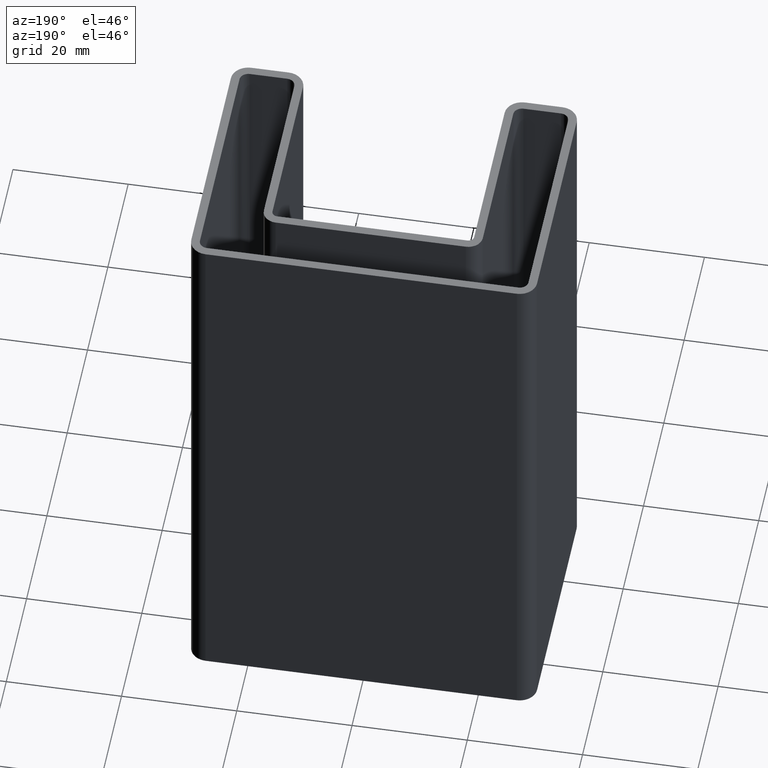
[diagram: clean part render]
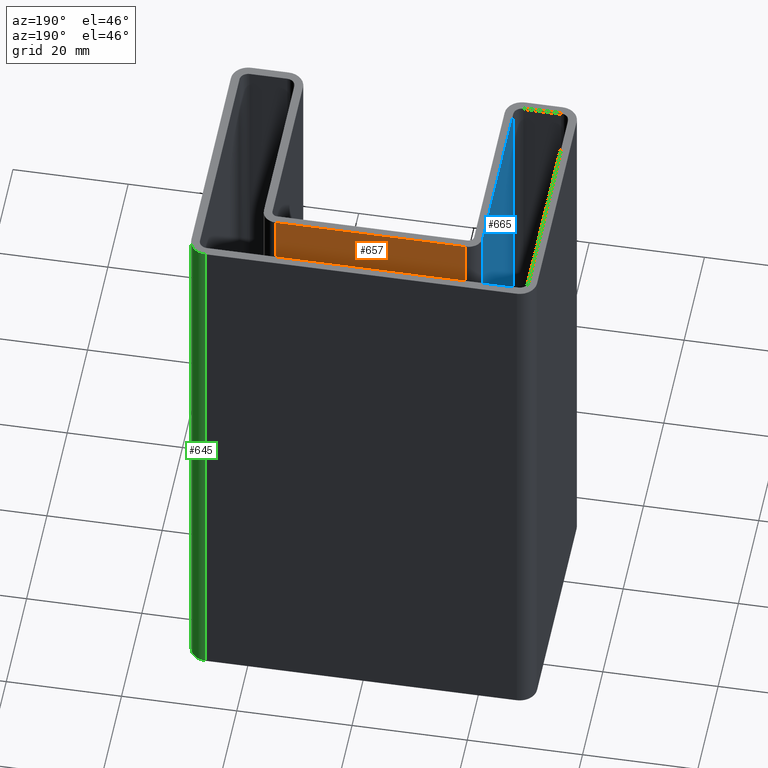
[diagram: same view with three faces highlighted in distinct colors, each labeled with its STEP entity id]
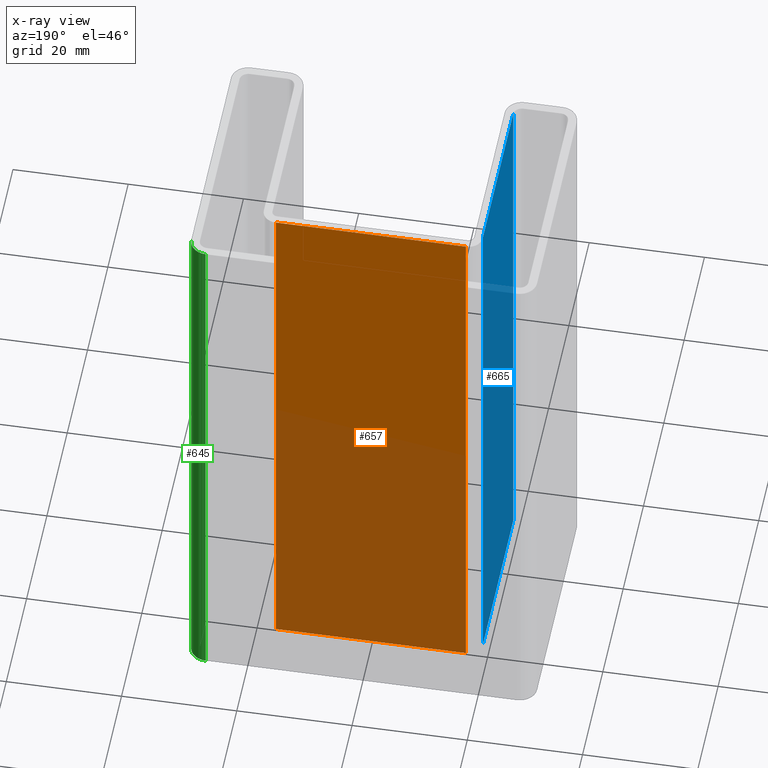
[diagram: x-ray of the same camera — body ghosted, the three highlighted faces saturated]
A machine part, auxiliary view with three faces highlighted in distinct colors.
The next image is the same camera in x-ray (body ghosted, the three faces saturated) — at least one of them is partly hidden behind the body in this view.
Their STEP definitions:

[orange] entity #657 — the highlighted planar face has unit normal (0, -1, 0).
#200=ORIENTED_EDGE('',*,*,#342,.F.);
#201=ORIENTED_EDGE('',*,*,#327,.F.);
#202=ORIENTED_EDGE('',*,*,#343,.F.);
#203=ORIENTED_EDGE('',*,*,#265,.F.);
#265=EDGE_CURVE('',#360,#362,#424,.T.);
#327=EDGE_CURVE('',#414,#401,#461,.T.);
#342=EDGE_CURVE('',#401,#360,#470,.T.);
#343=EDGE_CURVE('',#362,#414,#471,.F.);
#360=VERTEX_POINT('',#961);
#362=VERTEX_POINT('',#964);
#401=VERTEX_POINT('',#1059);
#414=VERTEX_POINT('',#1085);
#424=LINE('',#963,#488);
#461=LINE('',#1086,#525);
#470=LINE('',#1115,#534);
#471=LINE('',#1117,#535);
#488=VECTOR('',#763,1000.);
#525=VECTOR('',#866,1000.);
#534=VECTOR('',#905,1000.);
#535=VECTOR('',#908,1000.);
#569=EDGE_LOOP('',(#200,#201,#202,#203));
#605=FACE_BOUND('',#569,.T.);
#631=PLANE('',#736);
#657=ADVANCED_FACE('',(#605),#631,.F.);
#736=AXIS2_PLACEMENT_3D('',#1116,#906,#907);
#763=DIRECTION('',(-1.,0.,0.));
#866=DIRECTION('',(1.,0.,0.));
#905=DIRECTION('',(0.,0.,1.));
#906=DIRECTION('',(0.,-1.,0.));
#907=DIRECTION('',(0.,0.,-1.));
#908=DIRECTION('',(0.,0.,1.));
#961=CARTESIAN_POINT('',(16.5,1.49999999999999,50.6476146399861));
#963=CARTESIAN_POINT('',(-9.50000000001,1.50000000001,50.6476146399861));
#964=CARTESIAN_POINT('',(-16.5,1.49999999999999,50.6476146399861));
#1059=CARTESIAN_POINT('',(16.5,1.49999999999999,-49.3523853600139));
#1085=CARTESIAN_POINT('',(-16.5,1.49999999999999,-49.3523853600139));
#1086=CARTESIAN_POINT('',(-9.50000000001,1.50000000001,-49.3523853600239));
#1115=CARTESIAN_POINT('',(16.5,1.49999999999999,50.6476146399861));
#1116=CARTESIAN_POINT('',(-19.,1.49999999999999,50.6476146399861));
#1117=CARTESIAN_POINT('',(-16.5,1.49999999999999,50.6476146399861));

[blue] entity #665 — the highlighted planar face has unit normal (1, -0, 0).
#232=ORIENTED_EDGE('',*,*,#351,.F.);
#233=ORIENTED_EDGE('',*,*,#325,.F.);
#234=ORIENTED_EDGE('',*,*,#352,.F.);
#235=ORIENTED_EDGE('',*,*,#267,.F.);
#267=EDGE_CURVE('',#363,#364,#425,.T.);
#325=EDGE_CURVE('',#412,#413,#460,.T.);
#351=EDGE_CURVE('',#413,#363,#479,.T.);
#352=EDGE_CURVE('',#364,#412,#480,.T.);
#363=VERTEX_POINT('',#966);
#364=VERTEX_POINT('',#968);
#412=VERTEX_POINT('',#1081);
#413=VERTEX_POINT('',#1083);
#425=LINE('',#967,#489);
#460=LINE('',#1082,#524);
#479=LINE('',#1133,#543);
#480=LINE('',#1134,#544);
#489=VECTOR('',#766,1000.);
#524=VECTOR('',#863,1000.);
#543=VECTOR('',#932,1000.);
#544=VECTOR('',#933,1000.);
#577=EDGE_LOOP('',(#232,#233,#234,#235));
#613=FACE_BOUND('',#577,.T.);
#635=PLANE('',#744);
#665=ADVANCED_FACE('',(#613),#635,.F.);
#744=AXIS2_PLACEMENT_3D('',#1132,#930,#931);
#766=DIRECTION('',(0.,-1.,0.));
#863=DIRECTION('',(0.,1.,0.));
#930=DIRECTION('',(1.,-2.61228946970625E-16,0.));
#931=DIRECTION('',(0.,0.,1.));
#932=DIRECTION('',(0.,0.,1.));
#933=DIRECTION('',(0.,0.,-1.));
#966=CARTESIAN_POINT('',(-19.00000000001,-1.,50.6476146399861));
#967=CARTESIAN_POINT('',(-19.00000000001,-21.0323741007094,50.6476146399861));
#968=CARTESIAN_POINT('',(-19.,-31.,50.6476146399861));
#1081=CARTESIAN_POINT('',(-19.,-31.,-49.3523853600139));
#1082=CARTESIAN_POINT('',(-19.00000000001,-21.0323741007094,-49.3523853600239));
#1083=CARTESIAN_POINT('',(-19.00000000001,-1.,-49.3523853600239));
#1132=CARTESIAN_POINT('',(-19.,-33.,50.6476146399861));
#1133=CARTESIAN_POINT('',(-19.,-1.,50.6476146399861));
#1134=CARTESIAN_POINT('',(-19.,-31.,50.6476146399861));

[green] entity #645 — the highlighted cylindrical surface (edge-blend (fillet) strip) has radius 3 mm, axis along (0, 0, -1).
#21=CYLINDRICAL_SURFACE('',#709,3.);
#44=CIRCLE('',#695,3.);
#53=CIRCLE('',#710,3.);
#124=ORIENTED_EDGE('',*,*,#309,.T.);
#125=ORIENTED_EDGE('',*,*,#310,.T.);
#126=ORIENTED_EDGE('',*,*,#280,.T.);
#127=ORIENTED_EDGE('',*,*,#260,.T.);
#260=EDGE_CURVE('',#356,#357,#420,.F.);
#280=EDGE_CURVE('',#376,#356,#44,.F.);
#309=EDGE_CURVE('',#357,#399,#53,.T.);
#310=EDGE_CURVE('',#399,#376,#452,.T.);
#356=VERTEX_POINT('',#952);
#357=VERTEX_POINT('',#953);
#376=VERTEX_POINT('',#993);
#399=VERTEX_POINT('',#1051);
#420=LINE('',#951,#484);
#452=LINE('',#1052,#516);
#484=VECTOR('',#755,1000.);
#516=VECTOR('',#837,1000.);
#556=EDGE_LOOP('',(#124,#125,#126,#127));
#592=FACE_BOUND('',#556,.T.);
#645=ADVANCED_FACE('',(#592),#21,.T.);
#695=AXIS2_PLACEMENT_3D('',#992,#785,#786);
#709=AXIS2_PLACEMENT_3D('',#1049,#833,#834);
#710=AXIS2_PLACEMENT_3D('',#1050,#835,#836);
#755=DIRECTION('',(0.,0.,1.));
#785=DIRECTION('',(0.,0.,1.));
#786=DIRECTION('',(1.,0.,0.));
#833=DIRECTION('',(0.,0.,-1.));
#834=DIRECTION('',(-1.,0.,0.));
#835=DIRECTION('',(0.,0.,1.));
#836=DIRECTION('',(1.,0.,0.));
#837=DIRECTION('',(0.,0.,1.));
#951=CARTESIAN_POINT('',(30.,8.00000000000003,50.6476146399861));
#952=CARTESIAN_POINT('',(30.,8.00000000000003,50.6476146399861));
#953=CARTESIAN_POINT('',(30.,8.00000000000003,-49.3523853600139));
#992=CARTESIAN_POINT('',(27.,8.00000000000003,50.6476146399861));
#993=CARTESIAN_POINT('',(27.,11.,50.6476146399861));
#1049=CARTESIAN_POINT('',(27.,8.00000000000003,50.6476146399861));
#1050=CARTESIAN_POINT('',(27.,8.00000000000003,-49.3523853600139));
#1051=CARTESIAN_POINT('',(27.,11.,-49.3523853600139));
#1052=CARTESIAN_POINT('',(27.,11.,50.6476146399861));